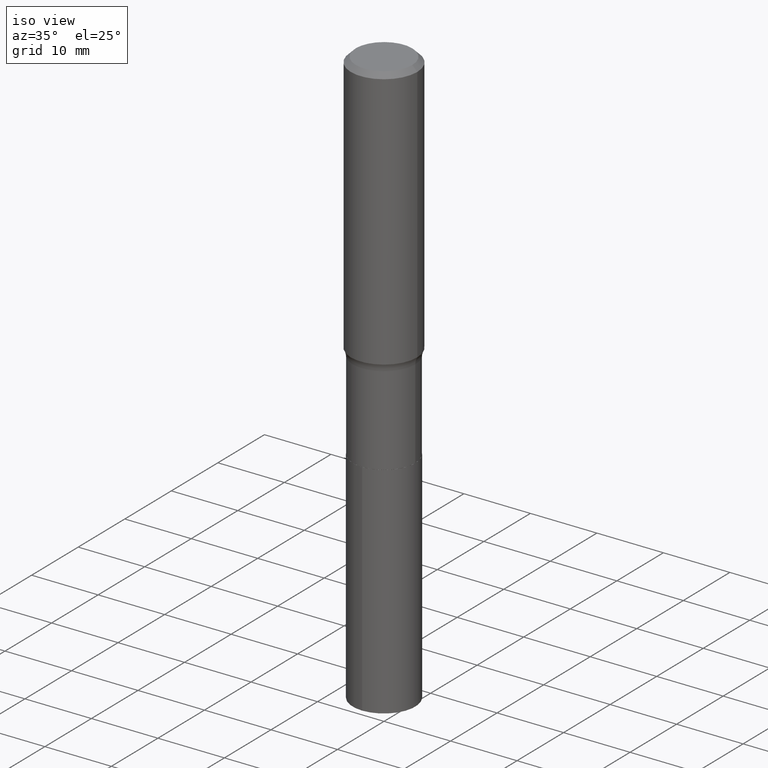
[diagram: clean part render]
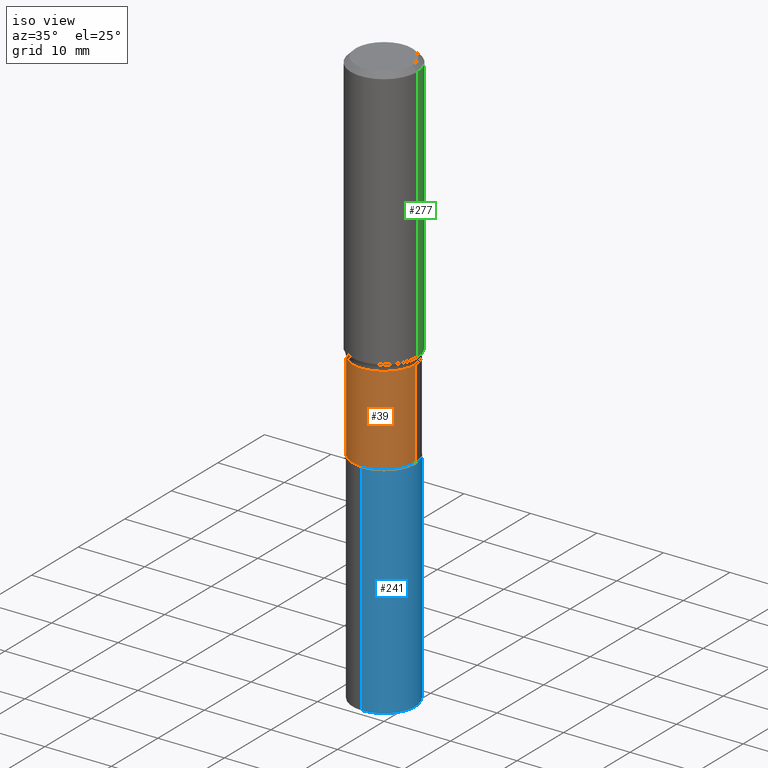
[diagram: same view with three faces highlighted in distinct colors, each labeled with its STEP entity id]
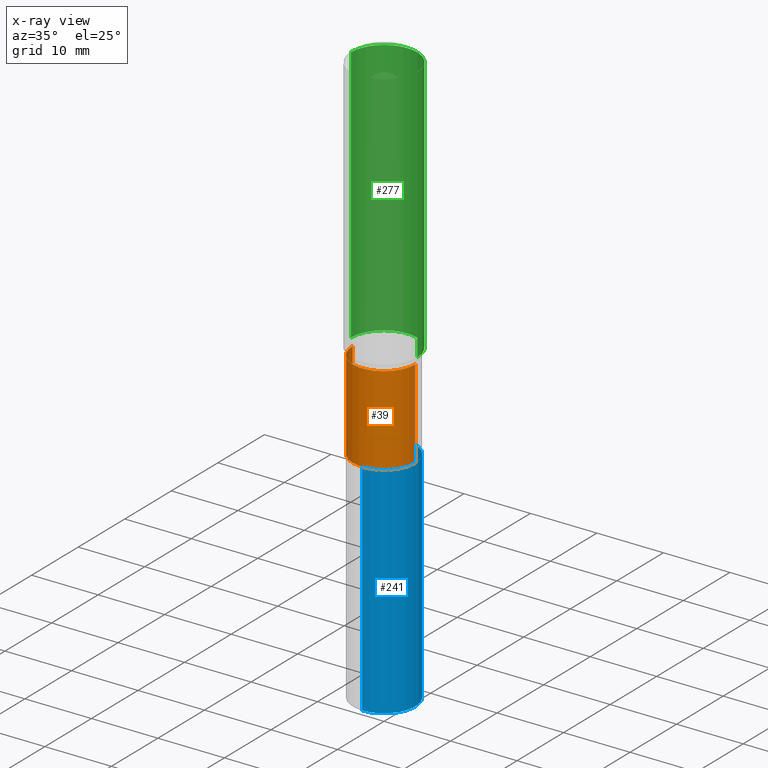
[diagram: x-ray of the same camera — body ghosted, the three highlighted faces saturated]
A machine part, iso view with three faces highlighted in distinct colors.
The next image is the same camera in x-ray (body ghosted, the three faces saturated) — at least one of them is partly hidden behind the body in this view.
Their STEP definitions:

[orange] entity #39 — the highlighted cylindrical surface (partial cylindrical patch) has radius 4.7003 mm, axis along (-0, 0, 1).
#5 = DIRECTION ( 'NONE',  ( -2.445468806185136597E-29, 3.491481338843145583E-15, 1.000000000000000000 ) ) ;
#18 = CARTESIAN_POINT ( 'NONE',  ( -0.1850499999999999923, -5.185231476000217823E-15, -2.125399999999999956 ) ) ;
#33 = VECTOR ( 'NONE', #40, 39.37007874015748143 ) ;
#38 = ORIENTED_EDGE ( 'NONE', *, *, #254, .T. ) ;
#39 = ADVANCED_FACE ( 'NONE', ( #430 ), #356, .T. ) ;
#40 = DIRECTION ( 'NONE',  ( -2.445468806185136877E-29, 3.491481338843145188E-15, 1.000000000000000000 ) ) ;
#53 = DIRECTION ( 'NONE',  ( 1.000000000000000000, -6.982962677686267499E-15, 4.876176775795935793E-29 ) ) ;
#58 = CARTESIAN_POINT ( 'NONE',  ( -0.1850499999999999090, -5.185231476000217823E-15, -1.597999999999999643 ) ) ;
#59 = CIRCLE ( 'NONE', #299, 0.1850499999999999090 ) ;
#66 = VECTOR ( 'NONE', #338, 39.37007874015748143 ) ;
#70 = CARTESIAN_POINT ( 'NONE',  ( 5.197599400665889285E-29, -7.420794437577220826E-15, -2.125399999999999956 ) ) ;
#76 = CIRCLE ( 'NONE', #321, 0.1850499999999999923 ) ;
#127 = VERTEX_POINT ( 'NONE', #58 ) ;
#128 = DIRECTION ( 'NONE',  ( 1.000000000000000000, -6.982962677686265133E-15, 0.000000000000000000 ) ) ;
#143 = CARTESIAN_POINT ( 'NONE',  ( -0.1850499999999999368, 1.314859332524064945E-15, -9.102489384516700747E-30 ) ) ;
#162 = ORIENTED_EDGE ( 'NONE', *, *, #375, .T. ) ;
#173 = EDGE_CURVE ( 'NONE', #198, #127, #474, .T. ) ;
#198 = VERTEX_POINT ( 'NONE', #18 ) ;
#201 = CARTESIAN_POINT ( 'NONE',  ( 0.1850499999999999090, -6.871584422977188194E-15, -1.597999999999999643 ) ) ;
#210 = CARTESIAN_POINT ( 'NONE',  ( 3.907859152283848022E-29, -5.579387179471346287E-15, -1.597999999999999643 ) ) ;
#228 = DIRECTION ( 'NONE',  ( -2.445468806185136597E-29, 3.491481338843145583E-15, 1.000000000000000000 ) ) ;
#230 = DIRECTION ( 'NONE',  ( 1.000000000000000000, -6.982962677686267499E-15, 0.000000000000000000 ) ) ;
#238 = ORIENTED_EDGE ( 'NONE', *, *, #485, .F. ) ;
#244 = CARTESIAN_POINT ( 'NONE',  ( 0.000000000000000000, 0.000000000000000000, 0.000000000000000000 ) ) ;
#254 = EDGE_CURVE ( 'NONE', #446, #481, #341, .T. ) ;
#285 = DIRECTION ( 'NONE',  ( -2.445468806185136597E-29, 3.491481338843145583E-15, 1.000000000000000000 ) ) ;
#299 = AXIS2_PLACEMENT_3D ( 'NONE', #210, #285, #128 ) ;
#321 = AXIS2_PLACEMENT_3D ( 'NONE', #70, #228, #230 ) ;
#338 = DIRECTION ( 'NONE',  ( -2.445468806185136877E-29, 3.491481338843145188E-15, 1.000000000000000000 ) ) ;
#341 = LINE ( 'NONE', #349, #33 ) ;
#349 = CARTESIAN_POINT ( 'NONE',  ( 0.1850499999999999368, -1.292197243505843287E-15, 9.023365123610376264E-30 ) ) ;
#356 = CYLINDRICAL_SURFACE ( 'NONE', #442, 0.1850499999999999368 ) ;
#375 = EDGE_CURVE ( 'NONE', #198, #446, #76, .T. ) ;
#417 = EDGE_LOOP ( 'NONE', ( #464, #162, #38, #238 ) ) ;
#430 = FACE_OUTER_BOUND ( 'NONE', #417, .T. ) ;
#442 = AXIS2_PLACEMENT_3D ( 'NONE', #244, #5, #53 ) ;
#446 = VERTEX_POINT ( 'NONE', #463 ) ;
#463 = CARTESIAN_POINT ( 'NONE',  ( 0.1850499999999999923, -8.712991681083064311E-15, -2.125399999999999956 ) ) ;
#464 = ORIENTED_EDGE ( 'NONE', *, *, #173, .F. ) ;
#474 = LINE ( 'NONE', #143, #66 ) ;
#481 = VERTEX_POINT ( 'NONE', #201 ) ;
#485 = EDGE_CURVE ( 'NONE', #127, #481, #59, .T. ) ;

[blue] entity #241 — the highlighted cylindrical surface (partial cylindrical patch) has radius 4.7003 mm, axis along (-0, 0, 1).
#34 = DIRECTION ( 'NONE',  ( -6.982962677686265133E-15, -1.000000000000000000, 2.952551195530141356E-15 ) ) ;
#47 = VERTEX_POINT ( 'NONE', #167 ) ;
#65 = LINE ( 'NONE', #223, #289 ) ;
#104 = FACE_OUTER_BOUND ( 'NONE', #387, .T. ) ;
#133 = CARTESIAN_POINT ( 'NONE',  ( -1.292197243505759076E-15, -0.1850500000000119827, -3.429134946909204285 ) ) ;
#145 = LINE ( 'NONE', #298, #242 ) ;
#150 = CARTESIAN_POINT ( 'NONE',  ( -1.292197243505791420E-15, -0.1850500000000074030, -2.125899999999999235 ) ) ;
#167 = CARTESIAN_POINT ( 'NONE',  ( 1.314859332524149156E-15, 0.1850499999999925815, -2.125900000000000567 ) ) ;
#172 = EDGE_CURVE ( 'NONE', #419, #350, #65, .T. ) ;
#176 = VERTEX_POINT ( 'NONE', #294 ) ;
#179 = AXIS2_PLACEMENT_3D ( 'NONE', #483, #440, #189 ) ;
#181 = DIRECTION ( 'NONE',  ( -2.445359563184350382E-29, 3.491637781037997457E-15, 1.000000000000000000 ) ) ;
#189 = DIRECTION ( 'NONE',  ( -6.982962677686265133E-15, -1.000000000000000000, 2.952551195530141356E-15 ) ) ;
#197 = CARTESIAN_POINT ( 'NONE',  ( 5.198822135068982087E-29, -7.422540178246643119E-15, -2.125899999999999679 ) ) ;
#211 = ORIENTED_EDGE ( 'NONE', *, *, #331, .F. ) ;
#223 = CARTESIAN_POINT ( 'NONE',  ( -1.292197243505791420E-15, -0.1850500000000074030, -2.125899999999999235 ) ) ;
#226 = CYLINDRICAL_SURFACE ( 'NONE', #313, 0.1850499999999999923 ) ;
#239 = EDGE_CURVE ( 'NONE', #176, #47, #145, .T. ) ;
#241 = ADVANCED_FACE ( 'NONE', ( #104 ), #226, .T. ) ;
#242 = VECTOR ( 'NONE', #437, 39.37007874015748143 ) ;
#250 = AXIS2_PLACEMENT_3D ( 'NONE', #408, #269, #34 ) ;
#269 = DIRECTION ( 'NONE',  ( -2.445359563184350382E-29, 3.491637781037997062E-15, 1.000000000000000000 ) ) ;
#270 = ORIENTED_EDGE ( 'NONE', *, *, #239, .T. ) ;
#272 = DIRECTION ( 'NONE',  ( -2.445359563184350382E-29, 3.491637781037997062E-15, 1.000000000000000000 ) ) ;
#289 = VECTOR ( 'NONE', #181, 39.37007874015748143 ) ;
#294 = CARTESIAN_POINT ( 'NONE',  ( 1.314859332524148958E-15, 0.1850499999999879741, -3.429134946909205173 ) ) ;
#298 = CARTESIAN_POINT ( 'NONE',  ( 1.314859332524117009E-15, 0.1850499999999925815, -2.125900000000000567 ) ) ;
#305 = CIRCLE ( 'NONE', #179, 0.1850499999999999923 ) ;
#313 = AXIS2_PLACEMENT_3D ( 'NONE', #197, #272, #418 ) ;
#327 = ORIENTED_EDGE ( 'NONE', *, *, #172, .F. ) ;
#331 = EDGE_CURVE ( 'NONE', #350, #47, #305, .T. ) ;
#350 = VERTEX_POINT ( 'NONE', #150 ) ;
#352 = ORIENTED_EDGE ( 'NONE', *, *, #381, .T. ) ;
#381 = EDGE_CURVE ( 'NONE', #419, #176, #409, .T. ) ;
#387 = EDGE_LOOP ( 'NONE', ( #352, #270, #211, #327 ) ) ;
#408 = CARTESIAN_POINT ( 'NONE',  ( 8.385700175569454907E-29, -1.197296455644387141E-14, -3.429134946909204729 ) ) ;
#409 = CIRCLE ( 'NONE', #250, 0.1850499999999999923 ) ;
#418 = DIRECTION ( 'NONE',  ( -6.982962677686265133E-15, -1.000000000000000000, 2.952551195530141356E-15 ) ) ;
#419 = VERTEX_POINT ( 'NONE', #133 ) ;
#437 = DIRECTION ( 'NONE',  ( -2.445359563184350382E-29, 3.491637781037997457E-15, 1.000000000000000000 ) ) ;
#440 = DIRECTION ( 'NONE',  ( -2.445359563184350382E-29, 3.491637781037997062E-15, 1.000000000000000000 ) ) ;
#483 = CARTESIAN_POINT ( 'NONE',  ( 5.198822135068982087E-29, -7.422540178246643119E-15, -2.125899999999999679 ) ) ;

[green] entity #277 — the highlighted cylindrical surface (partial cylindrical patch) has radius 5 mm, axis along (-0, 0, 1).
#6 = VERTEX_POINT ( 'NONE', #92 ) ;
#20 = AXIS2_PLACEMENT_3D ( 'NONE', #317, #458, #88 ) ;
#45 = CARTESIAN_POINT ( 'NONE',  ( 0.1968500000000001082, -1.374596203102542397E-15, 9.598753983154305062E-30 ) ) ;
#68 = CYLINDRICAL_SURFACE ( 'NONE', #216, 0.1968500000000001082 ) ;
#69 = VERTEX_POINT ( 'NONE', #281 ) ;
#77 = DIRECTION ( 'NONE',  ( 1.000000000000000000, -6.982962677686266711E-15, 4.876176775795935793E-29 ) ) ;
#81 = EDGE_CURVE ( 'NONE', #386, #69, #441, .T. ) ;
#88 = DIRECTION ( 'NONE',  ( 1.000000000000000000, -6.982962677686266711E-15, 0.000000000000000000 ) ) ;
#92 = CARTESIAN_POINT ( 'NONE',  ( 0.1968500000000002470, -6.809959883149110592E-15, -1.556750030303040599 ) ) ;
#94 = EDGE_LOOP ( 'NONE', ( #312, #209, #229, #450 ) ) ;
#147 = VECTOR ( 'NONE', #166, 39.37007874015748143 ) ;
#157 = DIRECTION ( 'NONE',  ( 1.000000000000000000, -6.982962677686265922E-15, 0.000000000000000000 ) ) ;
#166 = DIRECTION ( 'NONE',  ( -2.445468806185136877E-29, 3.491481338843145188E-15, 1.000000000000000000 ) ) ;
#191 = DIRECTION ( 'NONE',  ( -2.445468806185136597E-29, 3.491481338843145583E-15, 1.000000000000000000 ) ) ;
#193 = CARTESIAN_POINT ( 'NONE',  ( 0.1968500000000000527, -1.477690918335233688E-15, -0.02952750000000022024 ) ) ;
#208 = CIRCLE ( 'NONE', #482, 0.1968500000000002192 ) ;
#209 = ORIENTED_EDGE ( 'NONE', *, *, #367, .T. ) ;
#216 = AXIS2_PLACEMENT_3D ( 'NONE', #377, #191, #77 ) ;
#229 = ORIENTED_EDGE ( 'NONE', *, *, #81, .F. ) ;
#232 = VECTOR ( 'NONE', #303, 39.37007874015748143 ) ;
#233 = CARTESIAN_POINT ( 'NONE',  ( 3.806983638133851740E-29, -5.435363680046567406E-15, -1.556750030303040599 ) ) ;
#277 = ADVANCED_FACE ( 'NONE', ( #378 ), #68, .T. ) ;
#281 = CARTESIAN_POINT ( 'NONE',  ( -0.1968500000000000527, -1.370525822295871364E-15, -0.02952750000000022024 ) ) ;
#287 = CARTESIAN_POINT ( 'NONE',  ( -0.1968500000000002470, -4.036660304702808830E-15, -1.556750030303040599 ) ) ;
#303 = DIRECTION ( 'NONE',  ( -2.445468806185136877E-29, 3.491481338843145188E-15, 1.000000000000000000 ) ) ;
#306 = CARTESIAN_POINT ( 'NONE',  ( -0.1968500000000001082, 1.398703375343757985E-15, -9.682923725166787881E-30 ) ) ;
#308 = LINE ( 'NONE', #306, #232 ) ;
#312 = ORIENTED_EDGE ( 'NONE', *, *, #361, .T. ) ;
#317 = CARTESIAN_POINT ( 'NONE',  ( 7.220858017463216492E-31, -1.030947152326917595E-16, -0.02952750000000022024 ) ) ;
#324 = LINE ( 'NONE', #45, #147 ) ;
#361 = EDGE_CURVE ( 'NONE', #6, #428, #208, .T. ) ;
#367 = EDGE_CURVE ( 'NONE', #428, #69, #308, .T. ) ;
#377 = CARTESIAN_POINT ( 'NONE',  ( 0.000000000000000000, 0.000000000000000000, 0.000000000000000000 ) ) ;
#378 = FACE_OUTER_BOUND ( 'NONE', #94, .T. ) ;
#384 = DIRECTION ( 'NONE',  ( -2.445468806185136597E-29, 3.491481338843145583E-15, 1.000000000000000000 ) ) ;
#386 = VERTEX_POINT ( 'NONE', #193 ) ;
#428 = VERTEX_POINT ( 'NONE', #287 ) ;
#441 = CIRCLE ( 'NONE', #20, 0.1968500000000000527 ) ;
#450 = ORIENTED_EDGE ( 'NONE', *, *, #492, .F. ) ;
#458 = DIRECTION ( 'NONE',  ( -2.445468806185136597E-29, 3.491481338843145583E-15, 1.000000000000000000 ) ) ;
#482 = AXIS2_PLACEMENT_3D ( 'NONE', #233, #384, #157 ) ;
#492 = EDGE_CURVE ( 'NONE', #6, #386, #324, .T. ) ;